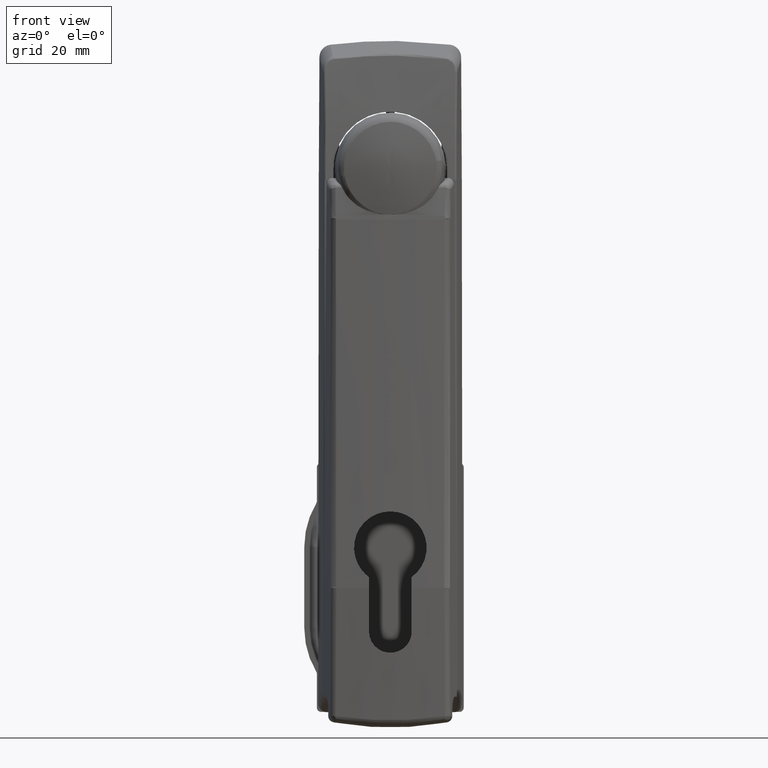
[diagram: clean part render]
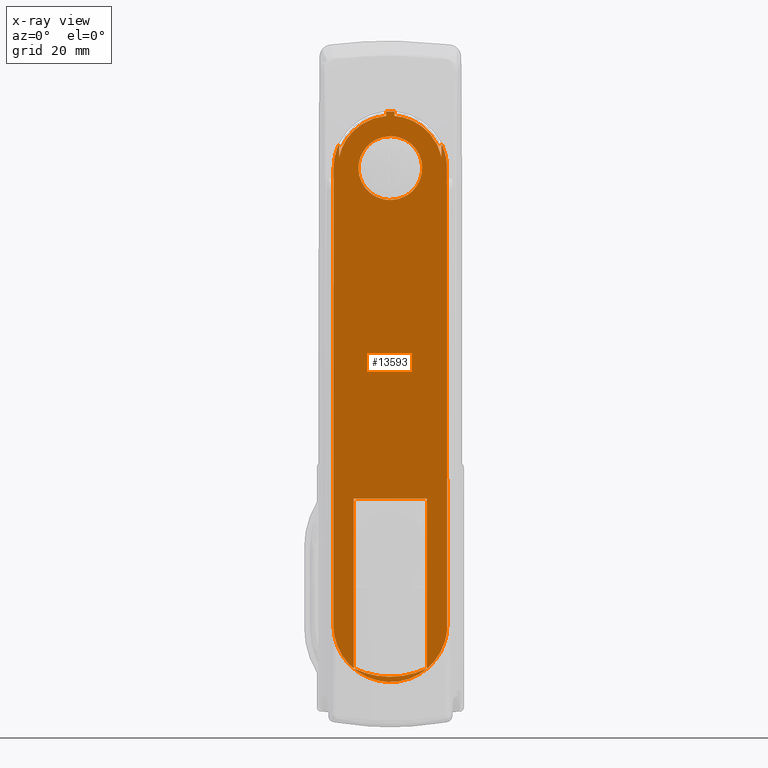
[diagram: x-ray — body ghosted, one internal face saturated and labeled with its STEP entity id]
A machine part, front view, then the same camera in x-ray: the body is ghosted and one INTERNAL B-rep face — a face not visible from any outside direction — is saturated and labeled: STEP entity #13593.
In plain terms, the highlighted face is a freeform B-spline surface patch.
Its self-contained STEP definition (entity closure, byte-faithful):
#11437=CARTESIAN_POINT('',(-3.500000000002500,0.0,7.600000000000000));
#11438=VERTEX_POINT('',#11437);
#11439=CARTESIAN_POINT('',(-3.500000000002427,5.326909800585702,5.420704011143132));
#11440=VERTEX_POINT('',#11439);
#11441=CARTESIAN_POINT('',(-3.500000000002500,0.0,7.600000000000000));
#11442=CARTESIAN_POINT('',(-3.500000000002500,3.109241593219904,7.600000000000000));
#11443=CARTESIAN_POINT('',(-3.500000000002500,5.326909800585733,5.420704011143168));
#11451=(BOUNDED_CURVE()B_SPLINE_CURVE(2,(#11441,#11442,#11443),.UNSPECIFIED.,.F.,.U.)B_SPLINE_CURVE_WITH_KNOTS((3,3),(0.500000000000000,0.623683225481971),.UNSPECIFIED.)CURVE()GEOMETRIC_REPRESENTATION_ITEM()RATIONAL_B_SPLINE_CURVE((1.0,0.855096087901422,0.853569641669309))REPRESENTATION_ITEM(''));
#11452=EDGE_CURVE('',#11438,#11440,#11451,.T.);
#11493=CARTESIAN_POINT('',(-3.500000000002427,-5.326909800585701,-5.420704011143132));
#11494=VERTEX_POINT('',#11493);
#11500=CARTESIAN_POINT('',(-3.500000000002426,-5.326909800585701,-5.420704011143132));
#11501=CARTESIAN_POINT('',(-3.500000000002501,-7.600000000000000,-3.186944994605080));
#11502=CARTESIAN_POINT('',(-3.500000000002500,-7.600000000000000,0.0));
#11503=CARTESIAN_POINT('',(-3.500000000002500,-7.600000000000000,7.600000000000000));
#11504=CARTESIAN_POINT('',(-3.500000000002500,0.0,7.600000000000000));
#11512=(BOUNDED_CURVE()B_SPLINE_CURVE(2,(#11500,#11501,#11502,#11503,#11504),.UNSPECIFIED.,.F.,.U.)B_SPLINE_CURVE_WITH_KNOTS((3,2,3),(0.123683225481971,0.250000000000000,0.500000000000000),.UNSPECIFIED.)CURVE()GEOMETRIC_REPRESENTATION_ITEM()RATIONAL_B_SPLINE_CURVE((0.853569641669309,0.852010693285126,1.0,0.707106781186547,1.0))REPRESENTATION_ITEM(''));
#11513=EDGE_CURVE('',#11494,#11438,#11512,.T.);
#11536=CARTESIAN_POINT('',(-3.500000000002500,0.0,-7.600000000000000));
#11537=VERTEX_POINT('',#11536);
#11538=CARTESIAN_POINT('',(-3.500000000002427,5.326909800585703,5.420704011143132));
#11539=CARTESIAN_POINT('',(-3.500000000002501,7.600000000000000,3.186944994605082));
#11540=CARTESIAN_POINT('',(-3.500000000002500,7.600000000000000,0.0));
#11541=CARTESIAN_POINT('',(-3.500000000002500,7.600000000000000,-7.600000000000000));
#11542=CARTESIAN_POINT('',(-3.500000000002500,0.0,-7.600000000000000));
#11550=(BOUNDED_CURVE()B_SPLINE_CURVE(2,(#11538,#11539,#11540,#11541,#11542),.UNSPECIFIED.,.F.,.U.)B_SPLINE_CURVE_WITH_KNOTS((3,2,3),(0.623683225481971,0.750000000000000,1.0),.UNSPECIFIED.)CURVE()GEOMETRIC_REPRESENTATION_ITEM()RATIONAL_B_SPLINE_CURVE((0.853569641669309,0.852010693285125,1.0,0.707106781186547,1.0))REPRESENTATION_ITEM(''));
#11551=EDGE_CURVE('',#11440,#11537,#11550,.T.);
#11553=CARTESIAN_POINT('',(-3.500000000002500,0.0,-7.600000000000000));
#11554=CARTESIAN_POINT('',(-3.500000000002501,-3.109241593219906,-7.600000000000001));
#11555=CARTESIAN_POINT('',(-3.500000000002502,-5.326909800585736,-5.420704011143169));
#11563=(BOUNDED_CURVE()B_SPLINE_CURVE(2,(#11553,#11554,#11555),.UNSPECIFIED.,.F.,.U.)B_SPLINE_CURVE_WITH_KNOTS((3,3),(0.0,0.123683225481971),.UNSPECIFIED.)CURVE()GEOMETRIC_REPRESENTATION_ITEM()RATIONAL_B_SPLINE_CURVE((1.0,0.855096087901422,0.853569641669309))REPRESENTATION_ITEM(''));
#11564=EDGE_CURVE('',#11537,#11494,#11563,.T.);
#13300=CARTESIAN_POINT('',(-3.500000000000090,13.499994861165360,-0.011779155682424));
#13301=VERTEX_POINT('',#13300);
#13307=CARTESIAN_POINT('',(-3.500000000000090,12.200120717769360,5.779883603659729));
#13308=VERTEX_POINT('',#13307);
#13309=CARTESIAN_POINT('',(-3.500000000000090,12.200120717769369,5.779883603659735));
#13310=CARTESIAN_POINT('',(-3.500000000000090,13.502649358850135,3.030519126929534));
#13311=CARTESIAN_POINT('',(-3.500000000000090,13.499994861165369,-0.011779155682418));
#13319=(BOUNDED_CURVE()B_SPLINE_CURVE(2,(#13309,#13310,#13311),.UNSPECIFIED.,.F.,.U.)CURVE()GEOMETRIC_REPRESENTATION_ITEM()QUASI_UNIFORM_CURVE()RATIONAL_B_SPLINE_CURVE((1.0,0.975535426613521,1.0))REPRESENTATION_ITEM(''));
#13320=EDGE_CURVE('',#13308,#13301,#13319,.T.);
#13344=CARTESIAN_POINT('',(-3.500000000000090,1.000120185797414,13.462903090119919));
#13345=VERTEX_POINT('',#13344);
#13351=CARTESIAN_POINT('',(-3.500000000000090,-1.000123354566880,13.462902854720820));
#13352=VERTEX_POINT('',#13351);
#13353=CARTESIAN_POINT('',(-3.500000000000090,-1.000123354566881,13.462902854720820));
#13354=CARTESIAN_POINT('',(-3.500000000000090,-0.000001593128307,13.537199248434643));
#13355=CARTESIAN_POINT('',(-3.500000000000090,1.000120185797414,13.462903090119919));
#13363=(BOUNDED_CURVE()B_SPLINE_CURVE(2,(#13353,#13354,#13355),.UNSPECIFIED.,.F.,.U.)CURVE()GEOMETRIC_REPRESENTATION_ITEM()QUASI_UNIFORM_CURVE()RATIONAL_B_SPLINE_CURVE((1.0,0.997252072031145,1.0))REPRESENTATION_ITEM(''));
#13364=EDGE_CURVE('',#13352,#13345,#13363,.T.);
#13388=CARTESIAN_POINT('',(-3.500000000000090,-12.200120717768860,5.779883603660791));
#13389=VERTEX_POINT('',#13388);
#13395=CARTESIAN_POINT('',(-3.500000000000090,-13.500000000000000,-2.517986E-013));
#13396=VERTEX_POINT('',#13395);
#13397=CARTESIAN_POINT('',(-3.500000000000090,-13.500000000000000,-2.517986E-013));
#13398=CARTESIAN_POINT('',(-3.500000000000090,-13.500000000000004,3.036111367191846));
#13399=CARTESIAN_POINT('',(-3.500000000000090,-12.200120717768870,5.779883603660792));
#13407=(BOUNDED_CURVE()B_SPLINE_CURVE(2,(#13397,#13398,#13399),.UNSPECIFIED.,.F.,.U.)CURVE()GEOMETRIC_REPRESENTATION_ITEM()QUASI_UNIFORM_CURVE()RATIONAL_B_SPLINE_CURVE((1.0,0.975631243288328,1.0))REPRESENTATION_ITEM(''));
#13408=EDGE_CURVE('',#13396,#13389,#13407,.T.);
#13418=CARTESIAN_POINT('',(-3.500000000000090,-14.950142217047500,-129.305778822448900));
#13419=CARTESIAN_POINT('',(-3.500000000000090,14.950142946180160,-129.305778822448900));
#13420=CARTESIAN_POINT('',(-3.500000000000090,-14.950142217047500,20.293628568576949));
#13421=CARTESIAN_POINT('',(-3.500000000000090,14.950142946180160,20.293628568576949));
#13422=B_SPLINE_SURFACE_WITH_KNOTS('',1,1,((#13418,#13420),(#13419,#13421)),.UNSPECIFIED.,.F.,.F.,.U.,(2,2),(2,2),(0.0,29.900285163227661),(0.0,149.599407391025810),.UNSPECIFIED.);
#13423=CARTESIAN_POINT('',(-3.500000000000060,-12.200120717768860,2.722533854957875));
#13424=VERTEX_POINT('',#13423);
#13425=CARTESIAN_POINT('',(-3.500000000000060,-1.000123354566880,12.460003252255200));
#13426=VERTEX_POINT('',#13425);
#13427=CARTESIAN_POINT('',(-3.500000000000060,-12.200120717768860,2.722533854957879));
#13428=CARTESIAN_POINT('',(-3.500000000000060,-10.191738574341308,11.722331165042325));
#13429=CARTESIAN_POINT('',(-3.500000000000060,-1.000123354566880,12.460003252255170));
#13437=(BOUNDED_CURVE()B_SPLINE_CURVE(2,(#13427,#13428,#13429),.UNSPECIFIED.,.F.,.U.)CURVE()GEOMETRIC_REPRESENTATION_ITEM()QUASI_UNIFORM_CURVE()RATIONAL_B_SPLINE_CURVE((1.0,0.804729893870051,1.0))REPRESENTATION_ITEM(''));
#13438=EDGE_CURVE('',#13424,#13426,#13437,.T.);
#13439=ORIENTED_EDGE('',*,*,#13438,.T.);
#13440=CARTESIAN_POINT('',(-3.500000000000090,-1.000123354566880,13.462902854720820));
#13441=CARTESIAN_POINT('',(-3.500000000000060,-1.000123354566880,12.460003252255200));
#13442=QUASI_UNIFORM_CURVE('',1,(#13440,#13441),.UNSPECIFIED.,.F.,.U.);
#13443=EDGE_CURVE('',#13352,#13426,#13442,.T.);
#13444=ORIENTED_EDGE('',*,*,#13443,.F.);
#13445=ORIENTED_EDGE('',*,*,#13364,.T.);
#13446=CARTESIAN_POINT('',(-3.500000000000060,1.000120185797414,12.460003506564020));
#13447=VERTEX_POINT('',#13446);
#13448=CARTESIAN_POINT('',(-3.500000000000060,1.000120185797414,12.460003506564020));
#13449=CARTESIAN_POINT('',(-3.500000000000090,1.000120185797414,13.462903090119919));
#13450=QUASI_UNIFORM_CURVE('',1,(#13448,#13449),.UNSPECIFIED.,.F.,.U.);
#13451=EDGE_CURVE('',#13447,#13345,#13450,.T.);
#13452=ORIENTED_EDGE('',*,*,#13451,.F.);
#13453=CARTESIAN_POINT('',(-3.500000000000060,12.200120717769460,2.722533854955230));
#13454=VERTEX_POINT('',#13453);
#13455=CARTESIAN_POINT('',(-3.500000000000060,1.000120185797411,12.460003506564020));
#13456=CARTESIAN_POINT('',(-3.500000000000060,10.191738039760663,11.722333560570473));
#13457=CARTESIAN_POINT('',(-3.500000000000060,12.200120717769449,2.722533854955227));
#13465=(BOUNDED_CURVE()B_SPLINE_CURVE(2,(#13455,#13456,#13457),.UNSPECIFIED.,.F.,.U.)CURVE()GEOMETRIC_REPRESENTATION_ITEM()QUASI_UNIFORM_CURVE()RATIONAL_B_SPLINE_CURVE((1.0,0.804729818383939,1.0))REPRESENTATION_ITEM(''));
#13466=EDGE_CURVE('',#13447,#13454,#13465,.T.);
#13467=ORIENTED_EDGE('',*,*,#13466,.T.);
#13468=CARTESIAN_POINT('',(-3.500000000000090,12.200120717769360,5.779883603659729));
#13469=CARTESIAN_POINT('',(-3.500000000000060,12.200120717769460,2.722533854955230));
#13470=QUASI_UNIFORM_CURVE('',1,(#13468,#13469),.UNSPECIFIED.,.F.,.U.);
#13471=EDGE_CURVE('',#13308,#13454,#13470,.T.);
#13472=ORIENTED_EDGE('',*,*,#13471,.F.);
#13473=ORIENTED_EDGE('',*,*,#13320,.T.);
#13474=CARTESIAN_POINT('',(-3.500000000000090,13.592274088300760,-108.899222409230010));
#13475=VERTEX_POINT('',#13474);
#13476=CARTESIAN_POINT('',(-3.500000000000090,13.592274088300760,-108.899222409230010));
#13477=CARTESIAN_POINT('',(-3.500000000000090,13.591571165638960,-108.432619849802410));
#13478=CARTESIAN_POINT('',(-3.500000000000090,13.583585274704699,-103.122519607909400));
#13479=CARTESIAN_POINT('',(-3.500000000000090,13.570201202337261,-94.054019577383201));
#13480=CARTESIAN_POINT('',(-3.500000000000090,13.553241845598000,-81.693501625597392));
#13481=CARTESIAN_POINT('',(-3.500000000000090,13.539066881364240,-70.417715934326594));
#13482=CARTESIAN_POINT('',(-3.500000000000090,13.526519975982559,-59.141407620673000));
#13483=CARTESIAN_POINT('',(-3.500000000000090,13.516796155539200,-48.803285453039400));
#13484=CARTESIAN_POINT('',(-3.500000000000090,13.509954543279800,-39.873528040673399));
#13485=CARTESIAN_POINT('',(-3.500000000000090,13.505324707168860,-32.352446937734797));
#13486=CARTESIAN_POINT('',(-3.500000000000090,13.502237143331399,-25.771524061110700));
#13487=CARTESIAN_POINT('',(-3.500000000000090,13.500227188221000,-19.660903770915951));
#13488=CARTESIAN_POINT('',(-3.500000000000090,13.499104136707160,-14.020485555284480));
#13489=CARTESIAN_POINT('',(-3.500000000000090,13.498743041578720,-8.380564060496999));
#13490=CARTESIAN_POINT('',(-3.500000000000090,13.499093180012220,-3.711013230216085));
#13491=CARTESIAN_POINT('',(-3.500000000000090,13.499598976610040,-0.921506949291047));
#13492=CARTESIAN_POINT('',(-3.500000000000090,13.499994861165360,-0.011779155682443));
#13493=B_SPLINE_CURVE_WITH_KNOTS('',3,(#13476,#13477,#13478,#13479,#13480,#13481,#13482,#13483,#13484,#13485,#13486,#13487,#13488,#13489,#13490,#13491,#13492),.UNSPECIFIED.,.F.,.U.,(4,1,1,1,1,1,1,1,1,1,1,1,1,1,4),(0.0,0.012855555573557,0.146300715920764,0.249849895491047,0.353405111669571,0.456964333974477,0.560527858938167,0.638234692220055,0.702991479262319,0.767744005679142,0.819548169972390,0.871347464624640,0.923145272465501,0.974935748451005,1.0),.UNSPECIFIED.);
#13494=EDGE_CURVE('',#13475,#13301,#13493,.T.);
#13495=ORIENTED_EDGE('',*,*,#13494,.F.);
#13496=CARTESIAN_POINT('',(-3.500000000000090,-13.592274088314500,-108.899222418351800));
#13497=VERTEX_POINT('',#13496);
#13498=CARTESIAN_POINT('',(-3.500000000000090,13.592274088300760,-108.899222409230010));
#13499=CARTESIAN_POINT('',(-3.500000000000092,13.594241111740491,-110.012331068110800));
#13500=CARTESIAN_POINT('',(-3.500000000000095,13.363001144400410,-111.904764703902800));
#13501=CARTESIAN_POINT('',(-3.500000000000086,12.511827616035070,-114.388406198348310));
#13502=CARTESIAN_POINT('',(-3.500000000000100,11.369326778745039,-116.499920440071190));
#13503=CARTESIAN_POINT('',(-3.500000000000068,9.763696910365621,-118.509829922049510));
#13504=CARTESIAN_POINT('',(-3.500000000000097,7.828007538391771,-120.120405694323910));
#13505=CARTESIAN_POINT('',(-3.500000000000092,5.643611907989906,-121.359244837014400));
#13506=CARTESIAN_POINT('',(-3.500000000000093,3.169215623150294,-122.245714991645800));
#13507=CARTESIAN_POINT('',(-3.500000000000089,0.557486492588915,-122.584464005472300));
#13508=CARTESIAN_POINT('',(-3.500000000000092,-1.670564137390579,-122.447183216168000));
#13509=CARTESIAN_POINT('',(-3.500000000000092,-3.476737213376139,-122.099102736524600));
#13510=CARTESIAN_POINT('',(-3.500000000000092,-5.437123028742164,-121.450881551279290));
#13511=CARTESIAN_POINT('',(-3.500000000000091,-7.804018729810800,-120.184584860437500));
#13512=CARTESIAN_POINT('',(-3.500000000000092,-9.925748825280261,-118.351811656189000));
#13513=CARTESIAN_POINT('',(-3.500000000000091,-11.479676811544129,-116.305273179218900));
#13514=CARTESIAN_POINT('',(-3.500000000000093,-12.582501512553799,-114.237077081410110));
#13515=CARTESIAN_POINT('',(-3.500000000000091,-13.386477112518280,-111.793467203298210));
#13516=CARTESIAN_POINT('',(-3.500000000000089,-13.593970941130870,-109.900996940826300));
#13517=CARTESIAN_POINT('',(-3.500000000000090,-13.592274088314500,-108.899222418351800));
#13518=B_SPLINE_CURVE_WITH_KNOTS('',3,(#13498,#13499,#13500,#13501,#13502,#13503,#13504,#13505,#13506,#13507,#13508,#13509,#13510,#13511,#13512,#13513,#13514,#13515,#13516,#13517),.UNSPECIFIED.,.F.,.U.,(4,1,1,1,1,1,1,1,1,1,1,1,1,1,1,1,1,4),(0.000000226686332,3.339261199788609,5.676745020475707,7.847294134445392,10.518742815953591,13.357130834027050,15.360618068349529,18.032021019292070,21.204363647634040,23.207948841037972,24.710637977082332,26.714227733695711,29.385517602661231,32.724840909836708,35.062330652246693,37.065914226132342,39.737359702503397,42.742658786218151),.UNSPECIFIED.);
#13519=EDGE_CURVE('',#13475,#13497,#13518,.T.);
#13520=ORIENTED_EDGE('',*,*,#13519,.T.);
#13521=CARTESIAN_POINT('',(-3.500000000000090,-13.500000000000000,-2.706724E-013));
#13522=CARTESIAN_POINT('',(-3.500000000000090,-13.499600401071520,-0.913654178225550));
#13523=CARTESIAN_POINT('',(-3.500000000000090,-13.499093474425640,-3.707086844669295));
#13524=CARTESIAN_POINT('',(-3.500000000000090,-13.498743041578740,-8.380564060496999));
#13525=CARTESIAN_POINT('',(-3.500000000000090,-13.499104136707180,-14.020485555284480));
#13526=CARTESIAN_POINT('',(-3.500000000000090,-13.500227188221000,-19.660903770915951));
#13527=CARTESIAN_POINT('',(-3.500000000000090,-13.502237143331399,-25.771524061110700));
#13528=CARTESIAN_POINT('',(-3.500000000000090,-13.505324707168841,-32.352446937734797));
#13529=CARTESIAN_POINT('',(-3.500000000000090,-13.509954543279800,-39.873528040673399));
#13530=CARTESIAN_POINT('',(-3.500000000000090,-13.516796155539200,-48.803285453039400));
#13531=CARTESIAN_POINT('',(-3.500000000000090,-13.526519975982540,-59.141407620673000));
#13532=CARTESIAN_POINT('',(-3.500000000000090,-13.539066881364240,-70.417715934326495));
#13533=CARTESIAN_POINT('',(-3.500000000000090,-13.553241845598000,-81.693501625597293));
#13534=CARTESIAN_POINT('',(-3.500000000000090,-13.570201202337261,-94.054019577383201));
#13535=CARTESIAN_POINT('',(-3.500000000000090,-13.583585274709179,-103.122519610949990));
#13536=CARTESIAN_POINT('',(-3.500000000000090,-13.591571165648100,-108.432619855883800));
#13537=CARTESIAN_POINT('',(-3.500000000000090,-13.592274088314500,-108.899222418351800));
#13538=B_SPLINE_CURVE_WITH_KNOTS('',3,(#13521,#13522,#13523,#13524,#13525,#13526,#13527,#13528,#13529,#13530,#13531,#13532,#13533,#13534,#13535,#13536,#13537),.UNSPECIFIED.,.F.,.U.,(4,1,1,1,1,1,1,1,1,1,1,1,1,1,4),(0.0,0.025169706067404,0.076954580100113,0.128746785195123,0.180540476940701,0.232339037800547,0.297084560215391,0.361834342794821,0.439532770863131,0.543085093806235,0.646633114555955,0.750177129612617,0.853715108713993,0.987145834872773,1.0),.UNSPECIFIED.);
#13539=EDGE_CURVE('',#13396,#13497,#13538,.T.);
#13540=ORIENTED_EDGE('',*,*,#13539,.F.);
#13541=ORIENTED_EDGE('',*,*,#13408,.T.);
#13542=CARTESIAN_POINT('',(-3.500000000000060,-12.200120717768860,2.722533854957875));
#13543=CARTESIAN_POINT('',(-3.500000000000090,-12.200120717768860,5.779883603660791));
#13544=QUASI_UNIFORM_CURVE('',1,(#13542,#13543),.UNSPECIFIED.,.F.,.U.);
#13545=EDGE_CURVE('',#13424,#13389,#13544,.T.);
#13546=ORIENTED_EDGE('',*,*,#13545,.F.);
#13547=EDGE_LOOP('',(#13439,#13444,#13445,#13452,#13467,#13472,#13473,#13495,#13520,#13540,#13541,#13546));
#13548=FACE_OUTER_BOUND('',#13547,.T.);
#13549=CARTESIAN_POINT('',(-3.500000000002500,8.699880441169059,-78.750003574183197));
#13550=VERTEX_POINT('',#13549);
#13551=CARTESIAN_POINT('',(-3.500000000002500,-8.700120717768870,-78.750003574183197));
#13552=VERTEX_POINT('',#13551);
#13553=CARTESIAN_POINT('',(-3.500000000002500,8.699880441169059,-78.750003574183197));
#13554=CARTESIAN_POINT('',(-3.500000000002500,-8.700120717768870,-78.750003574183197));
#13555=QUASI_UNIFORM_CURVE('',1,(#13553,#13554),.UNSPECIFIED.,.F.,.U.);
#13556=EDGE_CURVE('',#13550,#13552,#13555,.T.);
#13557=ORIENTED_EDGE('',*,*,#13556,.T.);
#13558=CARTESIAN_POINT('',(-3.500000000002500,-8.700120717768870,-119.250005925306990));
#13559=VERTEX_POINT('',#13558);
#13560=CARTESIAN_POINT('',(-3.500000000002500,-8.700120717768870,-78.750003574183197));
#13561=CARTESIAN_POINT('',(-3.500000000002500,-8.700120717768870,-119.250005925306990));
#13562=QUASI_UNIFORM_CURVE('',1,(#13560,#13561),.UNSPECIFIED.,.F.,.U.);
#13563=EDGE_CURVE('',#13552,#13559,#13562,.T.);
#13564=ORIENTED_EDGE('',*,*,#13563,.T.);
#13565=CARTESIAN_POINT('',(-3.500000000002500,8.699880441169041,-119.250005925306990));
#13566=VERTEX_POINT('',#13565);
#13567=CARTESIAN_POINT('',(-3.500000000002500,8.699880441169091,-119.250005925307090));
#13568=CARTESIAN_POINT('',(-3.500000000002500,-0.000120138299907,-123.473189043590070));
#13569=CARTESIAN_POINT('',(-3.500000000002500,-8.700120717768929,-119.250005925307090));
#13577=(BOUNDED_CURVE()B_SPLINE_CURVE(2,(#13567,#13568,#13569),.UNSPECIFIED.,.F.,.U.)CURVE()GEOMETRIC_REPRESENTATION_ITEM()QUASI_UNIFORM_CURVE()RATIONAL_B_SPLINE_CURVE((1.0,0.899611005298004,1.0))REPRESENTATION_ITEM(''));
#13578=EDGE_CURVE('',#13566,#13559,#13577,.T.);
#13579=ORIENTED_EDGE('',*,*,#13578,.F.);
#13580=CARTESIAN_POINT('',(-3.500000000002500,8.699880441169041,-119.250005925306990));
#13581=CARTESIAN_POINT('',(-3.500000000002500,8.699880441169059,-78.750003574183197));
#13582=QUASI_UNIFORM_CURVE('',1,(#13580,#13581),.UNSPECIFIED.,.F.,.U.);
#13583=EDGE_CURVE('',#13566,#13550,#13582,.T.);
#13584=ORIENTED_EDGE('',*,*,#13583,.T.);
#13585=EDGE_LOOP('',(#13557,#13564,#13579,#13584));
#13586=FACE_BOUND('',#13585,.T.);
#13587=ORIENTED_EDGE('',*,*,#11564,.F.);
#13588=ORIENTED_EDGE('',*,*,#11551,.F.);
#13589=ORIENTED_EDGE('',*,*,#11452,.F.);
#13590=ORIENTED_EDGE('',*,*,#11513,.F.);
#13591=EDGE_LOOP('',(#13587,#13588,#13589,#13590));
#13592=FACE_BOUND('',#13591,.T.);
#13593=ADVANCED_FACE('',(#13548,#13586,#13592),#13422,.F.);